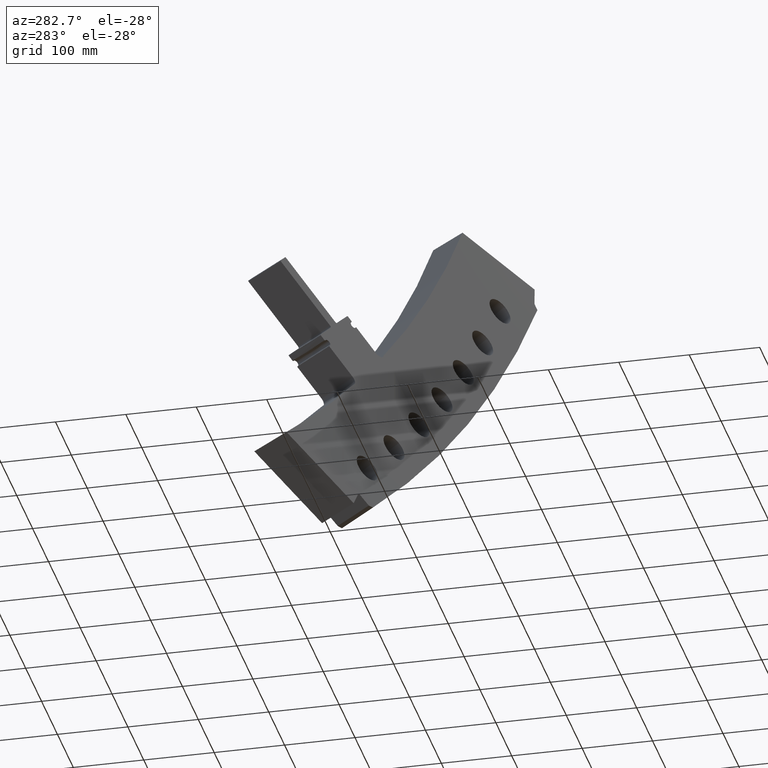
[diagram: clean part render]
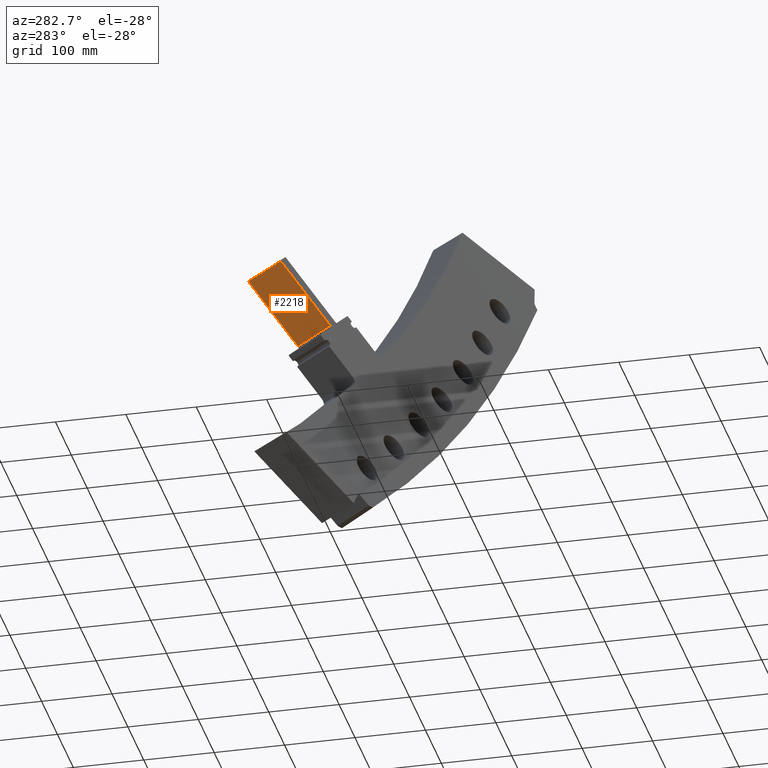
[diagram: same view with one face highlighted and labeled with its STEP entity id]
A machine part, auxiliary view. The second image highlights one B-rep face of the part: STEP entity #2218.
In plain terms, the highlighted face is a freeform B-spline surface patch.
Its self-contained STEP definition (entity closure, byte-faithful):
#137=CARTESIAN_POINT('',(7.399679862397E1,-1.897665077469E1,-4.532307988491E1));
#145=CARTESIAN_POINT('',(7.182785333719E1,-1.669804584982E1,-4.219461029477E1));
#146=CARTESIAN_POINT('',(7.206046464002E1,-1.694226685936E1,-4.252967109231E1));
#147=CARTESIAN_POINT('',(7.253126591042E1,-1.743667772503E1,-4.320816604364E1));
#148=CARTESIAN_POINT('',(7.325423423171E1,-1.819620900998E1,-4.425100137082E1));
#149=CARTESIAN_POINT('',(7.374740858372E1,-1.871451140917E1,-4.496293734740E1));
#150=CARTESIAN_POINT('',(7.399679862397E1,-1.897665077469E1,-4.532307988491E1));
#525=CARTESIAN_POINT('',(7.464358222914E1,-1.703658267810E1,-4.604072589176E1));
#526=CARTESIAN_POINT('',(7.438856846468E1,-1.676796244971E1,-4.567074089888E1));
#527=CARTESIAN_POINT('',(7.388746769144E1,-1.624011091573E1,-4.494367954877E1));
#528=CARTESIAN_POINT('',(7.316264276034E1,-1.547651325920E1,-4.389177272953E1));
#529=CARTESIAN_POINT('',(7.269734706992E1,-1.498624464309E1,-4.321625834680E1));
#530=CARTESIAN_POINT('',(7.246919064487E1,-1.474581258736E1,-4.288493044412E1));
#538=CARTESIAN_POINT('',(7.464358222914E1,-1.703658267810E1,-4.604072589176E1));
#777=CARTESIAN_POINT('',(7.246919064487E1,-1.474581258736E1,-4.288493044412E1));
#778=CARTESIAN_POINT('',(7.231633400686E1,-1.517543786349E1,-4.276681467217E1));
#779=CARTESIAN_POINT('',(7.209647283926E1,-1.583087484377E1,-4.255130936450E1));
#780=CARTESIAN_POINT('',(7.189562068151E1,-1.647498222890E1,-4.229072834522E1));
#781=CARTESIAN_POINT('',(7.182785333719E1,-1.669804584982E1,-4.219461029477E1));
#783=CARTESIAN_POINT('',(7.464358222914E1,-1.703658267810E1,-4.604072589176E1));
#784=CARTESIAN_POINT('',(7.453144648915E1,-1.735290949138E1,-4.594459080343E1));
#785=CARTESIAN_POINT('',(7.430740968473E1,-1.800593128842E1,-4.572455717818E1));
#786=CARTESIAN_POINT('',(7.409999231756E1,-1.864737006718E1,-4.546656314248E1));
#787=CARTESIAN_POINT('',(7.399679862397E1,-1.897665077469E1,-4.532307988491E1));
#945=VERTEX_POINT('',#137);
#946=VERTEX_POINT('',#145);
#971=VERTEX_POINT('',#538);
#972=VERTEX_POINT('',#530);
#2190=CARTESIAN_POINT('',(7.489885157183E1,-1.649669444746E1,
-4.627011128356E1));
#2191=CARTESIAN_POINT('',(7.407631786811E1,-1.589254624134E1,
-4.512207781579E1));
#2192=CARTESIAN_POINT('',(7.325378416440E1,-1.528839803522E1,
-4.397404434802E1));
#2193=CARTESIAN_POINT('',(7.243125046068E1,-1.468424982910E1,
-4.282601088026E1));
#2194=CARTESIAN_POINT('',(7.470983975535E1,-1.700879181531E1,
-4.613516852421E1));
#2195=CARTESIAN_POINT('',(7.389837871628E1,-1.637967787538E1,
-4.499234263647E1));
#2196=CARTESIAN_POINT('',(7.308691767721E1,-1.575056393544E1,
-4.384951674873E1));
#2197=CARTESIAN_POINT('',(7.227545663813E1,-1.512144999551E1,
-4.270669086099E1));
#2198=CARTESIAN_POINT('',(7.440985343318E1,-1.786860828697E1,
-4.586152595336E1));
#2199=CARTESIAN_POINT('',(7.361617824610E1,-1.719795859263E1,
-4.472952882025E1));
#2200=CARTESIAN_POINT('',(7.282250305901E1,-1.652730889828E1,
-4.359753168713E1));
#2201=CARTESIAN_POINT('',(7.202882787193E1,-1.585665920393E1,
-4.246553455402E1));
#2202=CARTESIAN_POINT('',(7.413831156919E1,-1.870855164012E1,
-4.552295543227E1));
#2203=CARTESIAN_POINT('',(7.336093298943E1,-1.799824617782E1,
-4.440446136770E1));
#2204=CARTESIAN_POINT('',(7.258355440966E1,-1.728794071552E1,
-4.328596730312E1));
#2205=CARTESIAN_POINT('',(7.180617582990E1,-1.657763525322E1,
-4.216747323854E1));
#2206=CARTESIAN_POINT('',(7.403188798462E1,-1.904853786125E1,
-4.537416665007E1));
#2207=CARTESIAN_POINT('',(7.326092186144E1,-1.832232298510E1,
-4.426161414026E1));
#2208=CARTESIAN_POINT('',(7.248995573827E1,-1.759610810895E1,
-4.314906163044E1));
#2209=CARTESIAN_POINT('',(7.171898961510E1,-1.686989323280E1,
-4.203650912063E1));
#2210=B_SPLINE_SURFACE_WITH_KNOTS('',3,3,((#2190,#2191,#2192,#2193),(#2194,
#2195,#2196,#2197),(#2198,#2199,#2200,#2201),(#2202,#2203,#2204,#2205),(#2206,
#2207,#2208,#2209)),.UNSPECIFIED.,.F.,.F.,.F.,(4,1,4),(4,4),(3.884203677475E-1,
5.212996199750E-1,6.132904592950E-1),(-2.E-2,1.02E0),.UNSPECIFIED.);
#2211=ORIENTED_EDGE('',*,*,#1012,.T.);
#2213=ORIENTED_EDGE('',*,*,#2212,.F.);
#2214=ORIENTED_EDGE('',*,*,#1190,.T.);
#2215=ORIENTED_EDGE('',*,*,#2183,.T.);
#2216=EDGE_LOOP('',(#2211,#2213,#2214,#2215));
#2217=FACE_OUTER_BOUND('',#2216,.F.);
#2218=ADVANCED_FACE('',(#2217),#2210,.T.);
#151=B_SPLINE_CURVE_WITH_KNOTS('',3,(#145,#146,#147,#148,#149,#150),
.UNSPECIFIED.,.F.,.F.,(4,1,1,4),(0.E0,3.333333333333E-1,6.666666666667E-1,1.E0),
.UNSPECIFIED.);
#531=B_SPLINE_CURVE_WITH_KNOTS('',3,(#525,#526,#527,#528,#529,#530),
.UNSPECIFIED.,.F.,.F.,(4,1,1,4),(0.E0,3.333333333333E-1,6.666666666667E-1,1.E0),
.UNSPECIFIED.);
#782=B_SPLINE_CURVE_WITH_KNOTS('',3,(#777,#778,#779,#780,#781),.UNSPECIFIED.,
.F.,.F.,(4,1,4),(0.E0,6.513449757908E-1,1.E0),.UNSPECIFIED.);
#788=B_SPLINE_CURVE_WITH_KNOTS('',3,(#783,#784,#785,#786,#787),.UNSPECIFIED.,
.F.,.F.,(4,1,4),(0.E0,4.813743179220E-1,1.E0),.UNSPECIFIED.);
#1012=EDGE_CURVE('',#946,#945,#151,.T.);
#1190=EDGE_CURVE('',#971,#972,#531,.T.);
#2183=EDGE_CURVE('',#972,#946,#782,.T.);
#2212=EDGE_CURVE('',#971,#945,#788,.T.);